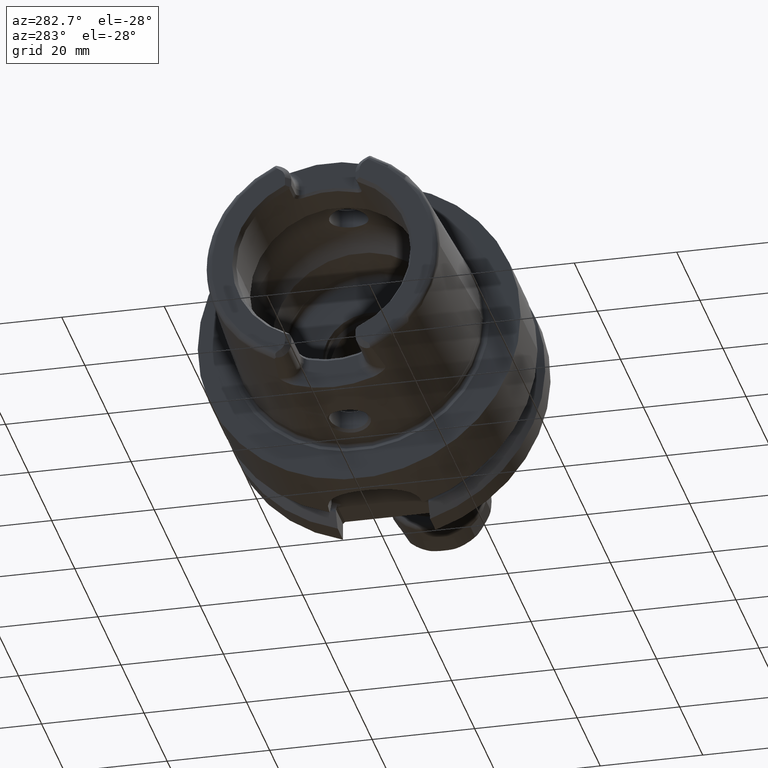
[diagram: clean part render]
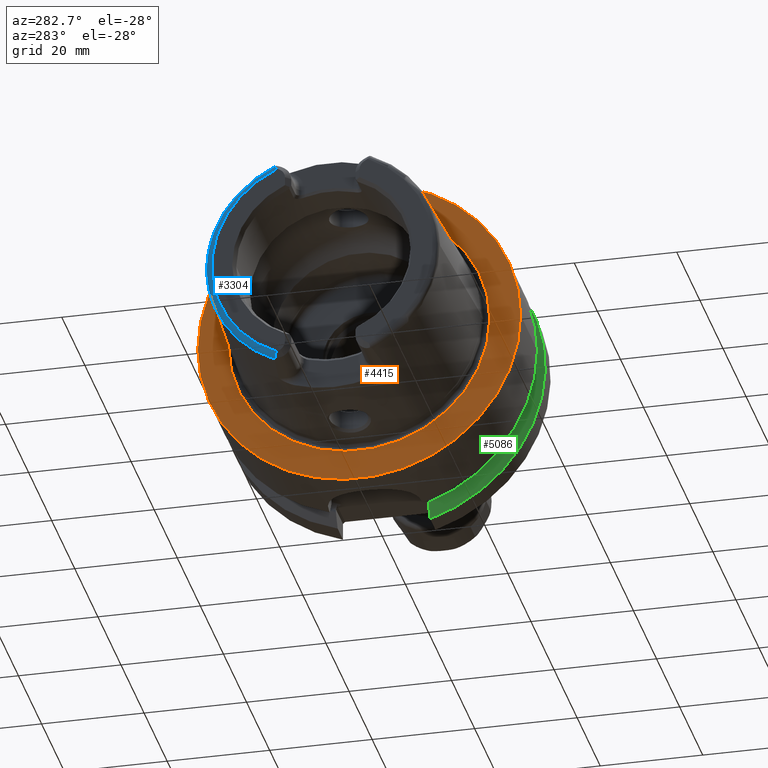
[diagram: same view with three faces highlighted in distinct colors, each labeled with its STEP entity id]
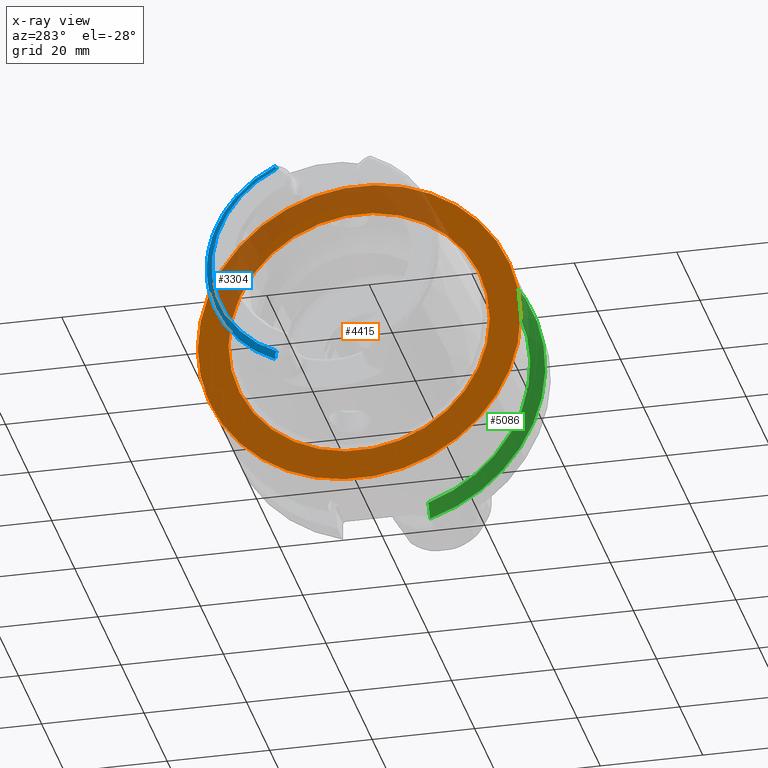
[diagram: x-ray of the same camera — body ghosted, the three highlighted faces saturated]
A machine part, auxiliary view with three faces highlighted in distinct colors.
The next image is the same camera in x-ray (body ghosted, the three faces saturated) — at least one of them is partly hidden behind the body in this view.
Their STEP definitions:

[orange] entity #4415 — the highlighted planar face has unit normal (1, 0, 0).
#1068=CARTESIAN_POINT('',(-1.421085471520E-14,0.E0,0.E0));
#1069=DIRECTION('',(1.E0,0.E0,0.E0));
#1070=DIRECTION('',(0.E0,1.E0,0.E0));
#1071=AXIS2_PLACEMENT_3D('',#1068,#1069,#1070);
#1073=CARTESIAN_POINT('',(-1.421085471520E-14,0.E0,0.E0));
#1074=DIRECTION('',(-1.E0,0.E0,0.E0));
#1075=DIRECTION('',(0.E0,1.E0,0.E0));
#1076=AXIS2_PLACEMENT_3D('',#1073,#1074,#1075);
#1078=CARTESIAN_POINT('',(0.E0,0.E0,0.E0));
#1079=DIRECTION('',(-1.E0,0.E0,0.E0));
#1080=DIRECTION('',(0.E0,-1.E0,0.E0));
#1081=AXIS2_PLACEMENT_3D('',#1078,#1079,#1080);
#1083=CARTESIAN_POINT('',(0.E0,0.E0,0.E0));
#1084=DIRECTION('',(-1.E0,0.E0,0.E0));
#1085=DIRECTION('',(0.E0,1.E0,0.E0));
#1086=AXIS2_PLACEMENT_3D('',#1083,#1084,#1085);
#2668=CARTESIAN_POINT('',(-1.421085471520E-14,3.15E1,0.E0));
#2669=CARTESIAN_POINT('',(-1.421085471520E-14,-3.15E1,0.E0));
#2670=VERTEX_POINT('',#2668);
#2671=VERTEX_POINT('',#2669);
#2696=CARTESIAN_POINT('',(0.E0,-2.549042414966E1,0.E0));
#2697=VERTEX_POINT('',#2696);
#2698=CARTESIAN_POINT('',(0.E0,2.549042414966E1,0.E0));
#2699=VERTEX_POINT('',#2698);
#4400=CARTESIAN_POINT('',(0.E0,0.E0,0.E0));
#4401=DIRECTION('',(1.E0,0.E0,0.E0));
#4402=DIRECTION('',(0.E0,-1.E0,0.E0));
#4403=AXIS2_PLACEMENT_3D('',#4400,#4401,#4402);
#4404=PLANE('',#4403);
#4406=ORIENTED_EDGE('',*,*,#4405,.T.);
#4408=ORIENTED_EDGE('',*,*,#4407,.F.);
#4409=EDGE_LOOP('',(#4406,#4408));
#4410=FACE_OUTER_BOUND('',#4409,.F.);
#4411=ORIENTED_EDGE('',*,*,#4395,.T.);
#4412=ORIENTED_EDGE('',*,*,#4379,.T.);
#4413=EDGE_LOOP('',(#4411,#4412));
#4414=FACE_BOUND('',#4413,.F.);
#4415=ADVANCED_FACE('',(#4410,#4414),#4404,.F.);
#1072=CIRCLE('',#1071,3.15E1);
#1077=CIRCLE('',#1076,3.15E1);
#1082=CIRCLE('',#1081,2.549042414966E1);
#1087=CIRCLE('',#1086,2.549042414966E1);
#4379=EDGE_CURVE('',#2699,#2697,#1087,.T.);
#4395=EDGE_CURVE('',#2697,#2699,#1082,.T.);
#4405=EDGE_CURVE('',#2670,#2671,#1072,.T.);
#4407=EDGE_CURVE('',#2670,#2671,#1077,.T.);

[blue] entity #3304 — the highlighted toroidal blend (fillet) surface has major radius 21.5761 mm and minor (blend) radius 1.2 mm.
#155=CARTESIAN_POINT('',(-3.142329832300E1,9.147789680232E0,-2.066750973939E1));
#156=CARTESIAN_POINT('',(-3.146785463680E1,9.169327161481E0,-2.062835928028E1));
#157=CARTESIAN_POINT('',(-3.155487993536E1,9.203474960428E0,-2.054672249220E1));
#158=CARTESIAN_POINT('',(-3.168154941819E1,9.224273580731E0,-2.040902349895E1));
#159=CARTESIAN_POINT('',(-3.179638971845E1,9.206079697358E0,-2.025999286960E1));
#160=CARTESIAN_POINT('',(-3.189041365611E1,9.144200972137E0,-2.010730009138E1));
#161=CARTESIAN_POINT('',(-3.195659880516E1,9.041253650427E0,-1.996104010677E1));
#162=CARTESIAN_POINT('',(-3.199307626724E1,8.906850532423E0,-1.982972129493E1));
#163=CARTESIAN_POINT('',(-3.2E1,8.806197293584E0,-1.975573388857E1));
#164=CARTESIAN_POINT('',(-3.2E1,8.752868121732E0,-1.972091419616E1));
#166=CARTESIAN_POINT('',(-3.132832518959E1,9.27E0,-2.067E1));
#167=CARTESIAN_POINT('',(-3.134450759901E1,9.250608646179E0,-2.067E1));
#168=CARTESIAN_POINT('',(-3.137648814066E1,9.210816796832E0,-2.066962390252E1));
#169=CARTESIAN_POINT('',(-3.140779600340E1,9.169107457374E0,-2.066837887831E1));
#170=CARTESIAN_POINT('',(-3.142329832300E1,9.147789680232E0,-2.066750973939E1));
#172=CARTESIAN_POINT('',(-3.086004306431E1,9.562027931336E0,-2.067E1));
#173=CARTESIAN_POINT('',(-3.089908117982E1,9.557369764332E0,-2.067E1));
#174=CARTESIAN_POINT('',(-3.097780815735E1,9.539070199208E0,-2.067E1));
#175=CARTESIAN_POINT('',(-3.110050491135E1,9.479694699778E0,-2.067E1));
#176=CARTESIAN_POINT('',(-3.121836320761E1,9.390392333018E0,-2.067E1));
#177=CARTESIAN_POINT('',(-3.129230837722E1,9.313158885277E0,-2.067E1));
#178=CARTESIAN_POINT('',(-3.132832518959E1,9.27E0,-2.067E1));
#180=CARTESIAN_POINT('',(-3.086004306431E1,0.E0,0.E0));
#181=DIRECTION('',(-1.E0,0.E0,0.E0));
#182=DIRECTION('',(0.E0,1.E0,0.E0));
#183=AXIS2_PLACEMENT_3D('',#180,#181,#182);
#185=CARTESIAN_POINT('',(-3.086004306431E1,0.E0,0.E0));
#186=DIRECTION('',(1.E0,0.E0,0.E0));
#187=DIRECTION('',(0.E0,1.E0,0.E0));
#188=AXIS2_PLACEMENT_3D('',#185,#186,#187);
#190=CARTESIAN_POINT('',(-3.132832518959E1,9.27E0,2.067E1));
#191=CARTESIAN_POINT('',(-3.129225458868E1,9.313223339992E0,2.067E1));
#192=CARTESIAN_POINT('',(-3.121820569130E1,9.390519030682E0,2.067E1));
#193=CARTESIAN_POINT('',(-3.110062643974E1,9.479612323317E0,2.067E1));
#194=CARTESIAN_POINT('',(-3.097775607391E1,9.539101836846E0,2.067E1));
#195=CARTESIAN_POINT('',(-3.089906305674E1,9.557371926843E0,2.067E1));
#196=CARTESIAN_POINT('',(-3.086004306431E1,9.562027931336E0,2.067E1));
#198=CARTESIAN_POINT('',(-3.142329832300E1,9.147789680232E0,2.066750973939E1));
#199=CARTESIAN_POINT('',(-3.140773724452E1,9.169188258734E0,2.066838217263E1));
#200=CARTESIAN_POINT('',(-3.137636553203E1,9.210974971125E0,2.066962696388E1));
#201=CARTESIAN_POINT('',(-3.134444355624E1,9.250685388521E0,2.067E1));
#202=CARTESIAN_POINT('',(-3.132832518959E1,9.27E0,2.067E1));
#204=CARTESIAN_POINT('',(-3.2E1,8.752868121732E0,1.972091419616E1));
#205=CARTESIAN_POINT('',(-3.2E1,8.806191392107E0,1.975573003538E1));
#206=CARTESIAN_POINT('',(-3.199307728065E1,8.906838058357E0,1.982971194007E1));
#207=CARTESIAN_POINT('',(-3.195660462370E1,9.041248816786E0,1.996103000182E1));
#208=CARTESIAN_POINT('',(-3.189040233195E1,9.144202826203E0,2.010731482616E1));
#209=CARTESIAN_POINT('',(-3.179646342749E1,9.206041881340E0,2.025988014952E1));
#210=CARTESIAN_POINT('',(-3.168160529070E1,9.224292971301E0,2.040896943202E1));
#211=CARTESIAN_POINT('',(-3.155472601909E1,9.203436757989E0,2.054688136818E1));
#212=CARTESIAN_POINT('',(-3.146778482605E1,9.169293416595E0,2.062842062115E1));
#213=CARTESIAN_POINT('',(-3.142329832300E1,9.147789680232E0,2.066750973939E1));
#215=CARTESIAN_POINT('',(-3.2E1,0.E0,0.E0));
#216=DIRECTION('',(-1.E0,0.E0,0.E0));
#217=DIRECTION('',(0.E0,4.056746540583E-1,9.140175463604E-1));
#218=AXIS2_PLACEMENT_3D('',#215,#216,#217);
#2692=CARTESIAN_POINT('',(-3.086004306431E1,2.277457525750E1,0.E0));
#2693=VERTEX_POINT('',#2692);
#2732=VERTEX_POINT('',#190);
#2733=VERTEX_POINT('',#196);
#2765=CARTESIAN_POINT('',(-3.2E1,8.752868121732E0,1.972091419616E1));
#2766=VERTEX_POINT('',#2765);
#2767=VERTEX_POINT('',#213);
#2813=VERTEX_POINT('',#172);
#2814=VERTEX_POINT('',#178);
#2861=CARTESIAN_POINT('',(-3.2E1,8.752868121732E0,-1.972091419616E1));
#2862=VERTEX_POINT('',#2861);
#2863=VERTEX_POINT('',#155);
#3280=CARTESIAN_POINT('',(-3.08E1,0.E0,0.E0));
#3281=DIRECTION('',(1.E0,0.E0,0.E0));
#3282=DIRECTION('',(0.E0,-1.E0,0.E0));
#3283=AXIS2_PLACEMENT_3D('',#3280,#3281,#3282);
#3284=TOROIDAL_SURFACE('',#3283,2.157607835286E1,1.2E0);
#3286=ORIENTED_EDGE('',*,*,#3285,.F.);
#3288=ORIENTED_EDGE('',*,*,#3287,.F.);
#3290=ORIENTED_EDGE('',*,*,#3289,.F.);
#3292=ORIENTED_EDGE('',*,*,#3291,.F.);
#3293=ORIENTED_EDGE('',*,*,#3171,.T.);
#3295=ORIENTED_EDGE('',*,*,#3294,.F.);
#3297=ORIENTED_EDGE('',*,*,#3296,.F.);
#3299=ORIENTED_EDGE('',*,*,#3298,.F.);
#3301=ORIENTED_EDGE('',*,*,#3300,.T.);
#3302=EDGE_LOOP('',(#3286,#3288,#3290,#3292,#3293,#3295,#3297,#3299,#3301));
#3303=FACE_OUTER_BOUND('',#3302,.F.);
#3304=ADVANCED_FACE('',(#3303),#3284,.T.);
#165=B_SPLINE_CURVE_WITH_KNOTS('',3,(#155,#156,#157,#158,#159,#160,#161,#162,
#163,#164),.UNSPECIFIED.,.F.,.F.,(4,1,1,1,1,1,1,4),(0.E0,1.428571428571E-1,
2.857142857143E-1,4.285714285714E-1,5.714285714286E-1,7.142857142857E-1,
8.571428571429E-1,1.E0),.UNSPECIFIED.);
#171=B_SPLINE_CURVE_WITH_KNOTS('',3,(#166,#167,#168,#169,#170),.UNSPECIFIED.,
.F.,.F.,(4,1,4),(0.E0,5.E-1,1.E0),.UNSPECIFIED.);
#179=B_SPLINE_CURVE_WITH_KNOTS('',3,(#172,#173,#174,#175,#176,#177,#178),
.UNSPECIFIED.,.F.,.F.,(4,1,1,1,4),(0.E0,2.5E-1,5.E-1,7.5E-1,1.E0),
.UNSPECIFIED.);
#184=CIRCLE('',#183,2.277457525750E1);
#189=CIRCLE('',#188,2.277457525750E1);
#197=B_SPLINE_CURVE_WITH_KNOTS('',3,(#190,#191,#192,#193,#194,#195,#196),
.UNSPECIFIED.,.F.,.F.,(4,1,1,1,4),(0.E0,2.5E-1,5.E-1,7.5E-1,1.E0),
.UNSPECIFIED.);
#203=B_SPLINE_CURVE_WITH_KNOTS('',3,(#198,#199,#200,#201,#202),.UNSPECIFIED.,
.F.,.F.,(4,1,4),(0.E0,5.E-1,1.E0),.UNSPECIFIED.);
#214=B_SPLINE_CURVE_WITH_KNOTS('',3,(#204,#205,#206,#207,#208,#209,#210,#211,
#212,#213),.UNSPECIFIED.,.F.,.F.,(4,1,1,1,1,1,1,4),(0.E0,1.428571428571E-1,
2.857142857143E-1,4.285714285714E-1,5.714285714286E-1,7.142857142857E-1,
8.571428571429E-1,1.E0),.UNSPECIFIED.);
#219=CIRCLE('',#218,2.157607835286E1);
#3171=EDGE_CURVE('',#2693,#2733,#189,.T.);
#3285=EDGE_CURVE('',#2863,#2862,#165,.T.);
#3287=EDGE_CURVE('',#2814,#2863,#171,.T.);
#3289=EDGE_CURVE('',#2813,#2814,#179,.T.);
#3291=EDGE_CURVE('',#2693,#2813,#184,.T.);
#3294=EDGE_CURVE('',#2732,#2733,#197,.T.);
#3296=EDGE_CURVE('',#2767,#2732,#203,.T.);
#3298=EDGE_CURVE('',#2766,#2767,#214,.T.);
#3300=EDGE_CURVE('',#2766,#2862,#219,.T.);

[green] entity #5086 — the highlighted conical surface has half-angle 60 deg.
#1797=CARTESIAN_POINT('',(1.9875E1,-2.100115501712E1,1.985E1));
#1798=CARTESIAN_POINT('',(2.002615778083E1,-2.136140971936E1,1.985E1));
#1799=CARTESIAN_POINT('',(2.033884699379E1,-2.209786160622E1,1.985E1));
#1800=CARTESIAN_POINT('',(2.083744118214E1,-2.324577082409E1,1.985E1));
#1801=CARTESIAN_POINT('',(2.119367380645E1,-2.404863363206E1,1.985E1));
#1802=CARTESIAN_POINT('',(2.137749907476E1,-2.445868966237E1,1.985E1));
#1804=CARTESIAN_POINT('',(2.137749907476E1,0.E0,0.E0));
#1805=DIRECTION('',(1.E0,0.E0,0.E0));
#1806=DIRECTION('',(0.E0,-7.764663384879E-1,6.301587301587E-1));
#1807=AXIS2_PLACEMENT_3D('',#1804,#1805,#1806);
#1809=CARTESIAN_POINT('',(1.9875E1,-9.0175E0,-2.745461174016E1));
#1810=CARTESIAN_POINT('',(2.003399901875E1,-9.0175E0,-2.774448053791E1));
#1811=CARTESIAN_POINT('',(2.035729051151E1,-9.0175E0,-2.833297398512E1));
#1812=CARTESIAN_POINT('',(2.085789481016E1,-9.0175E0,-2.924158789478E1));
#1813=CARTESIAN_POINT('',(2.120250873981E1,-9.0175E0,-2.986536377611E1));
#1814=CARTESIAN_POINT('',(2.137749907476E1,-9.0175E0,-3.018169467989E1));
#1816=CARTESIAN_POINT('',(1.9875E1,0.E0,0.E0));
#1817=DIRECTION('',(-1.E0,0.E0,0.E0));
#1818=DIRECTION('',(0.E0,-3.120501867909E-1,-9.500656192726E-1));
#1819=AXIS2_PLACEMENT_3D('',#1816,#1817,#1818);
#3071=CARTESIAN_POINT('',(1.9875E1,-9.0175E0,-2.745461174016E1));
#3073=VERTEX_POINT('',#3071);
#3076=VERTEX_POINT('',#1814);
#3083=CARTESIAN_POINT('',(2.137749907476E1,-2.445868966237E1,1.985E1));
#3085=VERTEX_POINT('',#3083);
#3099=CARTESIAN_POINT('',(1.9875E1,-2.100115501712E1,1.985E1));
#3101=VERTEX_POINT('',#3099);
#5074=CARTESIAN_POINT('',(2.062624953738E1,0.E0,0.E0));
#5075=DIRECTION('',(1.E0,0.E0,0.E0));
#5076=DIRECTION('',(0.E0,-1.E0,0.E0));
#5077=AXIS2_PLACEMENT_3D('',#5074,#5075,#5076);
#5078=CONICAL_SURFACE('',#5077,3.019879763210E1,6.E1);
#5079=ORIENTED_EDGE('',*,*,#4955,.T.);
#5080=ORIENTED_EDGE('',*,*,#4868,.T.);
#5082=ORIENTED_EDGE('',*,*,#5081,.F.);
#5083=ORIENTED_EDGE('',*,*,#5041,.T.);
#5084=EDGE_LOOP('',(#5079,#5080,#5082,#5083));
#5085=FACE_OUTER_BOUND('',#5084,.F.);
#5086=ADVANCED_FACE('',(#5085),#5078,.T.);
#1803=B_SPLINE_CURVE_WITH_KNOTS('',3,(#1797,#1798,#1799,#1800,#1801,#1802),
.UNSPECIFIED.,.F.,.F.,(4,1,1,4),(0.E0,3.333333333333E-1,6.666666666667E-1,1.E0),
.UNSPECIFIED.);
#1808=CIRCLE('',#1807,3.15E1);
#1815=B_SPLINE_CURVE_WITH_KNOTS('',3,(#1809,#1810,#1811,#1812,#1813,#1814),
.UNSPECIFIED.,.F.,.F.,(4,1,1,4),(0.E0,3.333333333333E-1,6.666666666667E-1,1.E0),
.UNSPECIFIED.);
#1820=CIRCLE('',#1819,2.889759526419E1);
#4868=EDGE_CURVE('',#3085,#3076,#1808,.T.);
#4955=EDGE_CURVE('',#3101,#3085,#1803,.T.);
#5041=EDGE_CURVE('',#3073,#3101,#1820,.T.);
#5081=EDGE_CURVE('',#3073,#3076,#1815,.T.);